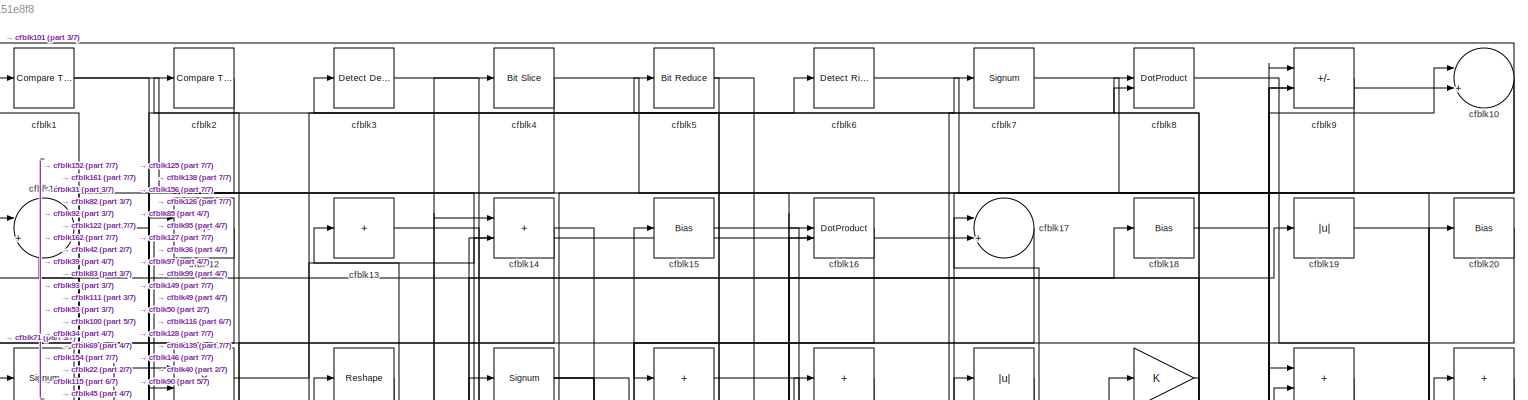
[diagram: root canvas - part 1/7, full width, top band]
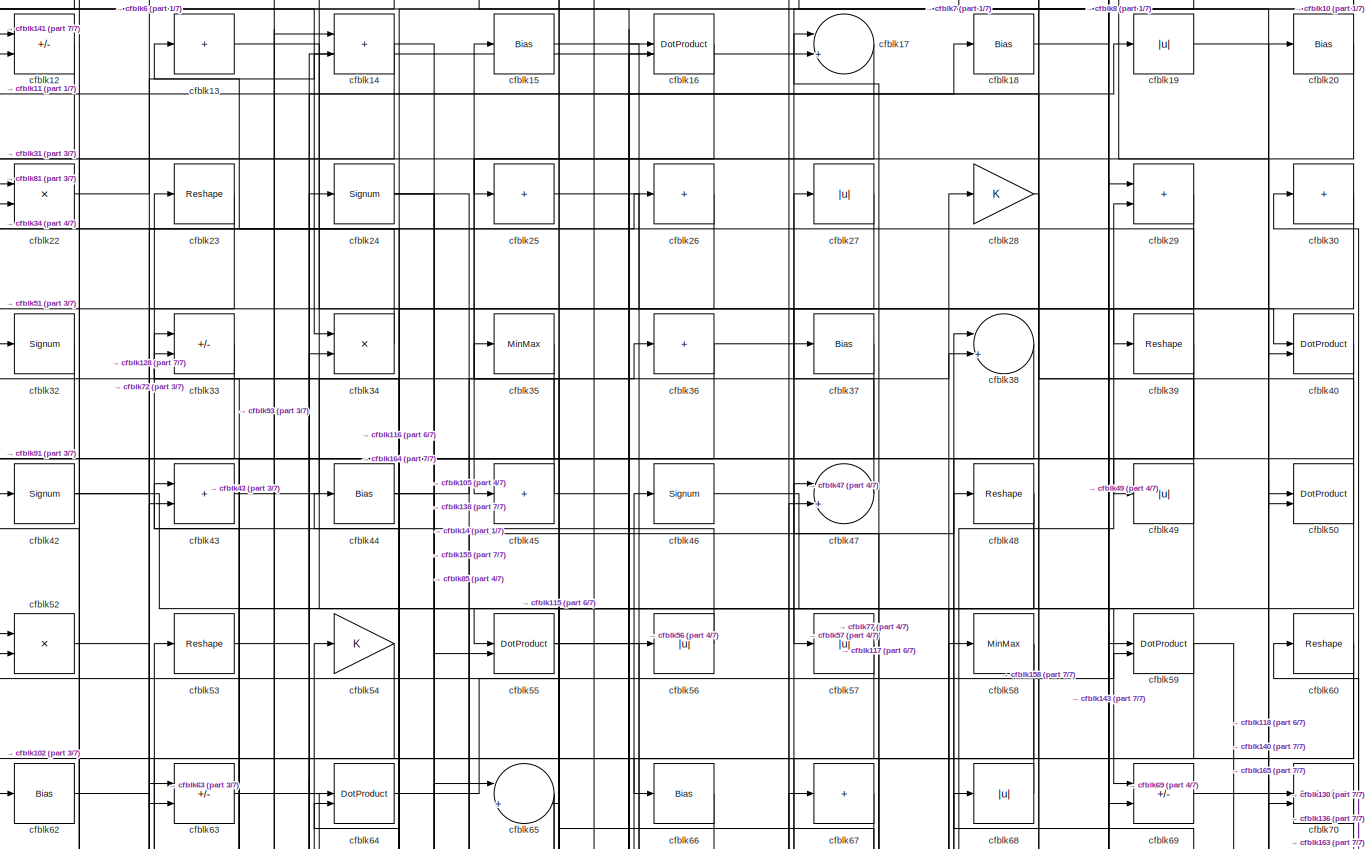
[diagram: root canvas - part 2/7, full width, top band]
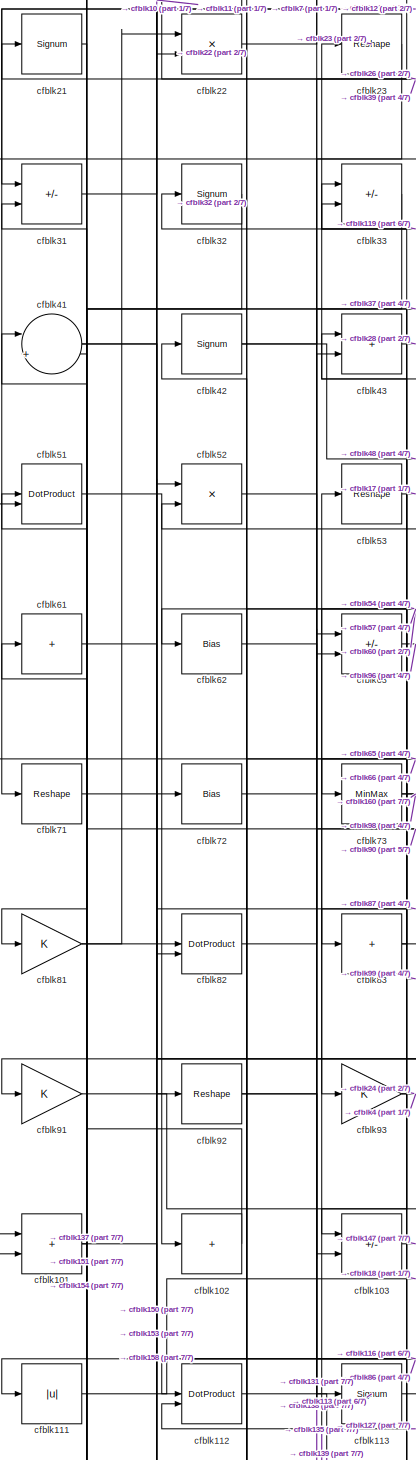
[diagram: root canvas - part 3/7, middle left region]
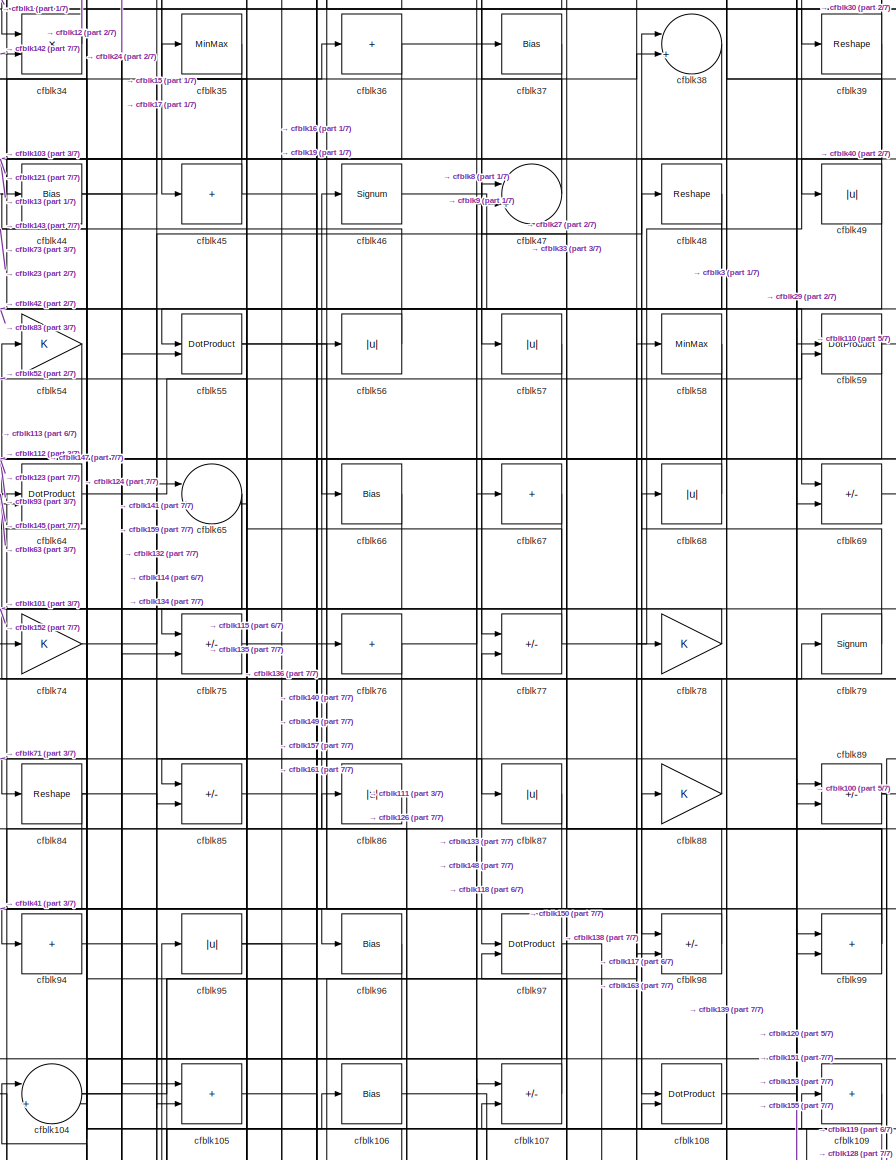
[diagram: root canvas - part 4/7, central region]
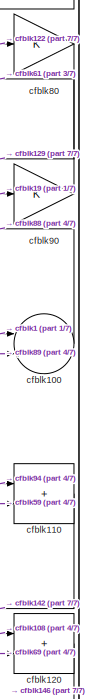
[diagram: root canvas - part 5/7, middle right region]
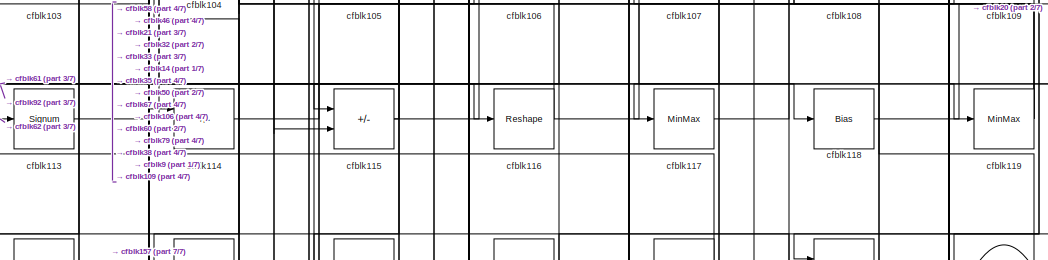
[diagram: root canvas - part 6/7, bottom center region]
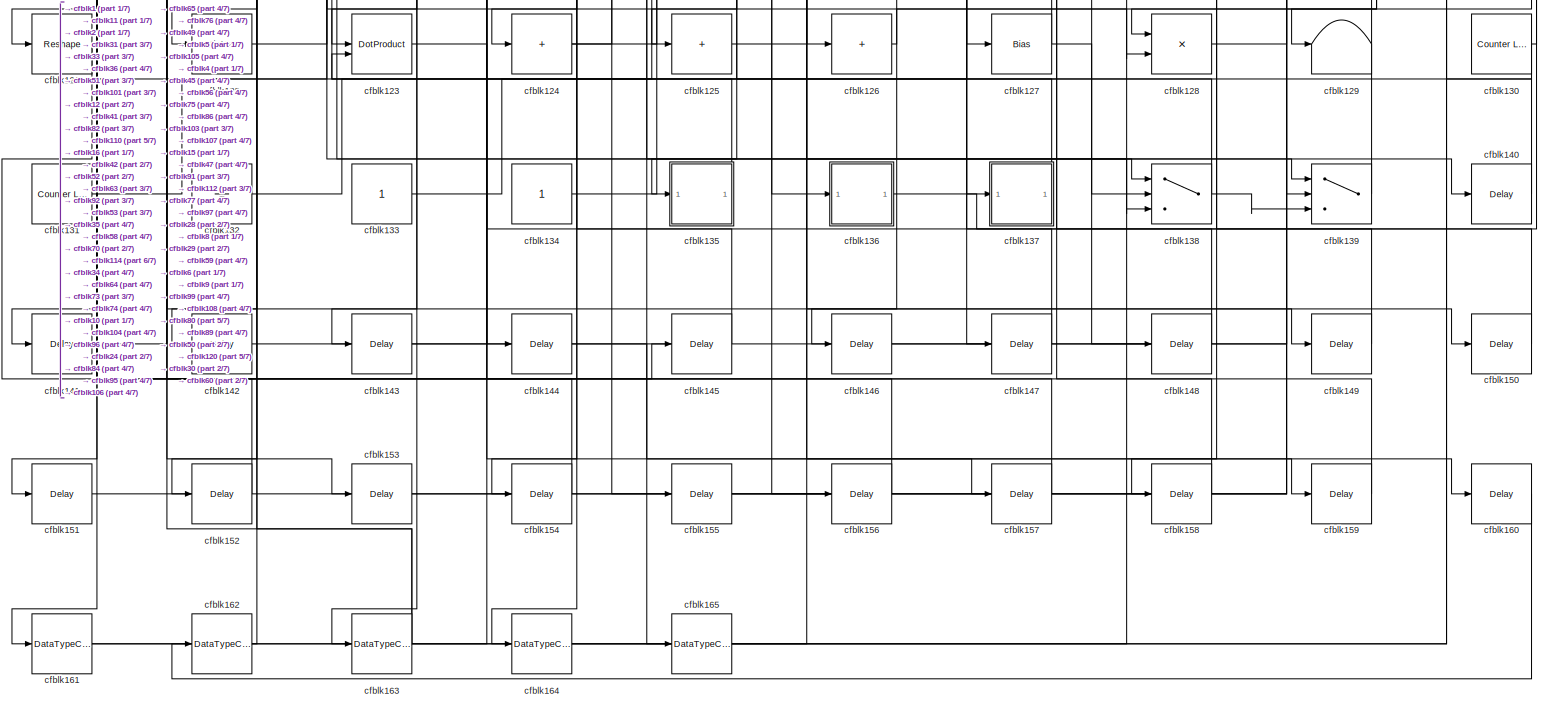
[diagram: root canvas - part 7/7, full width, bottom band]
MODEL slx_888d2151e8f8
KIND model
CONFIG AbsTol = auto
CONFIG EnableMultiTasking = off
CONFIG FixedStep = auto
CONFIG MaxStep = auto
CONFIG MinStep = auto
CONFIG RelTol = 1e-3
CONFIG SampleTimeConstraint = Unconstrained
CONFIG SolverName = VariableStepAuto
CONFIG StartTime = 0.0
CONFIG StopTime = 10.0
BLOCK [Reference] cfblk1  REF=hdlsllib/Logic and Bit
Operations/Compare
To Constant
  SourceBlock = hdlsllib/Logic and Bit\nOperations/Compare\nTo Constant
  SourceType = Compare To Constant
BLOCK [Sum] cfblk10
  Inputs = |++
BLOCK [Sum] cfblk100
  Inputs = |++
BLOCK [Sum] cfblk101
  IconShape = rectangular
BLOCK [Sum] cfblk102
  IconShape = rectangular
  Inputs = +
BLOCK [Sum] cfblk103
  IconShape = rectangular
  Inputs = +-
BLOCK [Sum] cfblk104
  Inputs = |++
BLOCK [Sum] cfblk105
  IconShape = rectangular
BLOCK [Bias] cfblk106
  Bias = 0.0
  SaturateOnIntegerOverflow = off
BLOCK [Sum] cfblk107
  IconShape = rectangular
  Inputs = +-
BLOCK [DotProduct] cfblk108
  OutDataTypeStr = Inherit: Inherit via internal rule
BLOCK [Sum] cfblk109
  IconShape = rectangular
  Inputs = +
BLOCK [Sum] cfblk11
  Inputs = |++
BLOCK [Sum] cfblk110
  IconShape = rectangular
BLOCK [Abs] cfblk111
  SaturateOnIntegerOverflow = off
BLOCK [DotProduct] cfblk112
  OutDataTypeStr = Inherit: Inherit via internal rule
BLOCK [Signum] cfblk113
BLOCK [Sum] cfblk114
  IconShape = rectangular
  Inputs = +-
BLOCK [Sum] cfblk115
  IconShape = rectangular
  Inputs = +-
BLOCK [Reshape] cfblk116
BLOCK [MinMax] cfblk117
BLOCK [Bias] cfblk118
  Bias = 0.0
  SaturateOnIntegerOverflow = off
BLOCK [MinMax] cfblk119
BLOCK [Sum] cfblk12
  IconShape = rectangular
  Inputs = +-
BLOCK [Sum] cfblk120
  IconShape = rectangular
BLOCK [Reshape] cfblk121
BLOCK [MinMax] cfblk122
BLOCK [DotProduct] cfblk123
  OutDataTypeStr = Inherit: Inherit via internal rule
BLOCK [Sum] cfblk124
  IconShape = rectangular
  Inputs = +
BLOCK [Sum] cfblk125
  IconShape = rectangular
  Inputs = +
BLOCK [Sum] cfblk126
  IconShape = rectangular
  Inputs = +
BLOCK [Bias] cfblk127
  Bias = 0.0
  SaturateOnIntegerOverflow = off
BLOCK [Product] cfblk128
  Inputs = */
  RndMeth = Zero
  SaturateOnIntegerOverflow = on
BLOCK [Terminator] cfblk129
BLOCK [Sum] cfblk13
  IconShape = rectangular
  Inputs = +
BLOCK [Reference] cfblk130  REF=hdlsllib/Sources/Counter
Limited
  SourceBlock = hdlsllib/Sources/Counter\nLimited
  SourceType = Counter Limited
BLOCK [Reference] cfblk131  REF=hdlsllib/Sources/Counter
Limited
  SourceBlock = hdlsllib/Sources/Counter\nLimited
  SourceType = Counter Limited
BLOCK [Ground] cfblk132
BLOCK [Constant] cfblk133
  SampleTime = -1
BLOCK [Constant] cfblk134
  SampleTime = -1
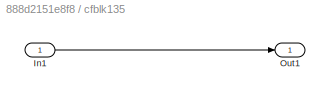
BLOCK [SubSystem] cfblk135
  LibrarySourceBlock = hdlsllib/Ports &\nSubsystems/Subsystem
BLOCK [Inport] cfblk135/In1
BLOCK [Outport] cfblk135/Out1
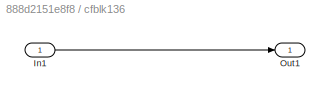
BLOCK [SubSystem] cfblk136
  LibrarySourceBlock = hdlsllib/Ports &\nSubsystems/Subsystem
BLOCK [Inport] cfblk136/In1
BLOCK [Outport] cfblk136/Out1
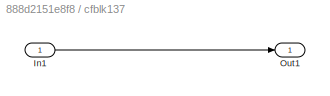
BLOCK [SubSystem] cfblk137
  LibrarySourceBlock = hdlsllib/Ports &\nSubsystems/Subsystem
BLOCK [Inport] cfblk137/In1
BLOCK [Outport] cfblk137/Out1
BLOCK [Switch] cfblk138
  InputSameDT = off
  SaturateOnIntegerOverflow = off
BLOCK [Switch] cfblk139
  InputSameDT = off
  SaturateOnIntegerOverflow = off
BLOCK [Sum] cfblk14
  IconShape = rectangular
BLOCK [Delay] cfblk140
  InputPortMap = u0
  SampleTime = 1
BLOCK [Delay] cfblk141
  InputPortMap = u0
  SampleTime = 1
BLOCK [Delay] cfblk142
  InputPortMap = u0
  SampleTime = 1
BLOCK [Delay] cfblk143
  InputPortMap = u0
  SampleTime = 1
BLOCK [Delay] cfblk144
  InputPortMap = u0
  SampleTime = 1
BLOCK [Delay] cfblk145
  InputPortMap = u0
  SampleTime = 1
BLOCK [Delay] cfblk146
  InputPortMap = u0
  SampleTime = 1
BLOCK [Delay] cfblk147
  InputPortMap = u0
  SampleTime = 1
BLOCK [Delay] cfblk148
  InputPortMap = u0
  SampleTime = 1
BLOCK [Delay] cfblk149
  InputPortMap = u0
  SampleTime = 1
BLOCK [Bias] cfblk15
  Bias = 0.0
  SaturateOnIntegerOverflow = off
BLOCK [Delay] cfblk150
  InputPortMap = u0
  SampleTime = 1
BLOCK [Delay] cfblk151
  InputPortMap = u0
  SampleTime = 1
BLOCK [Delay] cfblk152
  InputPortMap = u0
  SampleTime = 1
BLOCK [Delay] cfblk153
  InputPortMap = u0
  SampleTime = 1
BLOCK [Delay] cfblk154
  InputPortMap = u0
  SampleTime = 1
BLOCK [Delay] cfblk155
  InputPortMap = u0
  SampleTime = 1
BLOCK [Delay] cfblk156
  InputPortMap = u0
  SampleTime = 1
BLOCK [Delay] cfblk157
  InputPortMap = u0
  SampleTime = 1
BLOCK [Delay] cfblk158
  InputPortMap = u0
  SampleTime = 1
BLOCK [Delay] cfblk159
  InputPortMap = u0
  SampleTime = 1
BLOCK [DotProduct] cfblk16
  OutDataTypeStr = Inherit: Inherit via internal rule
BLOCK [Delay] cfblk160
  InputPortMap = u0
  SampleTime = 1
BLOCK [DataTypeConversion] cfblk161
  RndMeth = Floor
  SaturateOnIntegerOverflow = off
BLOCK [DataTypeConversion] cfblk162
  OutDataTypeStr = uint8
  RndMeth = Floor
  SaturateOnIntegerOverflow = off
BLOCK [DataTypeConversion] cfblk163
  RndMeth = Floor
  SaturateOnIntegerOverflow = off
BLOCK [DataTypeConversion] cfblk164
  OutDataTypeStr = uint8
  RndMeth = Floor
  SaturateOnIntegerOverflow = off
BLOCK [DataTypeConversion] cfblk165
  OutDataTypeStr = uint8
  RndMeth = Floor
  SaturateOnIntegerOverflow = off
BLOCK [Sum] cfblk17
  Inputs = |++
BLOCK [Bias] cfblk18
  Bias = 0.0
  SaturateOnIntegerOverflow = off
BLOCK [Abs] cfblk19
  SaturateOnIntegerOverflow = off
BLOCK [Reference] cfblk2  REF=hdlsllib/Logic and Bit
Operations/Compare
To Constant
  SourceBlock = hdlsllib/Logic and Bit\nOperations/Compare\nTo Constant
  SourceType = Compare To Constant
BLOCK [Bias] cfblk20
  Bias = 0.0
  SaturateOnIntegerOverflow = off
BLOCK [Signum] cfblk21
BLOCK [Product] cfblk22
  Inputs = */
  RndMeth = Zero
  SaturateOnIntegerOverflow = on
BLOCK [Reshape] cfblk23
BLOCK [Signum] cfblk24
BLOCK [Sum] cfblk25
  IconShape = rectangular
  Inputs = +
BLOCK [Sum] cfblk26
  IconShape = rectangular
  Inputs = +
BLOCK [Abs] cfblk27
  SaturateOnIntegerOverflow = off
BLOCK [Gain] cfblk28
BLOCK [Sum] cfblk29
  IconShape = rectangular
BLOCK [Reference] cfblk3  REF=simulink/Logic and Bit
Operations/Detect
Decrease
  LibrarySourceBlock = hdlsllib/Logic and Bit\nOperations/Detect\nDecrease
  SourceBlock = simulink/Logic and Bit\nOperations/Detect\nDecrease
  SourceType = Detect Decrease
BLOCK [Sum] cfblk30
  IconShape = rectangular
  Inputs = +
BLOCK [Sum] cfblk31
  IconShape = rectangular
  Inputs = +-
BLOCK [Signum] cfblk32
BLOCK [Sum] cfblk33
  IconShape = rectangular
  Inputs = +-
BLOCK [Product] cfblk34
  Inputs = */
  RndMeth = Zero
  SaturateOnIntegerOverflow = on
BLOCK [MinMax] cfblk35
BLOCK [Sum] cfblk36
  IconShape = rectangular
  Inputs = +
BLOCK [Bias] cfblk37
  Bias = 0.0
  SaturateOnIntegerOverflow = off
BLOCK [Sum] cfblk38
  Inputs = |++
BLOCK [Reshape] cfblk39
BLOCK [Reference] cfblk4  REF=hdlsllib/Logic and Bit
Operations/Bit Slice
  SourceBlock = hdlsllib/Logic and Bit\nOperations/Bit Slice
  SourceType = Bit Slice
BLOCK [DotProduct] cfblk40
  OutDataTypeStr = Inherit: Inherit via internal rule
BLOCK [Sum] cfblk41
  Inputs = |++
BLOCK [Signum] cfblk42
BLOCK [Sum] cfblk43
  IconShape = rectangular
BLOCK [Bias] cfblk44
  Bias = 0.0
  SaturateOnIntegerOverflow = off
BLOCK [Sum] cfblk45
  IconShape = rectangular
  Inputs = +
BLOCK [Signum] cfblk46
BLOCK [Sum] cfblk47
  Inputs = |++
BLOCK [Reshape] cfblk48
BLOCK [Abs] cfblk49
  SaturateOnIntegerOverflow = off
BLOCK [Reference] cfblk5  REF=hdlsllib/Logic and Bit
Operations/Bit Reduce
  SourceBlock = hdlsllib/Logic and Bit\nOperations/Bit Reduce
  SourceType = Bit Reduce
BLOCK [DotProduct] cfblk50
  OutDataTypeStr = Inherit: Inherit via internal rule
BLOCK [DotProduct] cfblk51
  OutDataTypeStr = Inherit: Inherit via internal rule
BLOCK [Product] cfblk52
  Inputs = */
  RndMeth = Zero
  SaturateOnIntegerOverflow = on
BLOCK [Reshape] cfblk53
BLOCK [Gain] cfblk54
BLOCK [DotProduct] cfblk55
  OutDataTypeStr = Inherit: Inherit via internal rule
BLOCK [Abs] cfblk56
  SaturateOnIntegerOverflow = off
BLOCK [Abs] cfblk57
  SaturateOnIntegerOverflow = off
BLOCK [MinMax] cfblk58
BLOCK [DotProduct] cfblk59
  OutDataTypeStr = Inherit: Inherit via internal rule
BLOCK [Reference] cfblk6  REF=hdlsllib/Logic and Bit
Operations/Detect Rise
Nonnegative
  SourceBlock = hdlsllib/Logic and Bit\nOperations/Detect Rise\nNonnegative
  SourceType = Detect Rise Nonnegative
BLOCK [Reshape] cfblk60
BLOCK [Sum] cfblk61
  IconShape = rectangular
  Inputs = +
BLOCK [Bias] cfblk62
  Bias = 0.0
  SaturateOnIntegerOverflow = off
BLOCK [Sum] cfblk63
  IconShape = rectangular
  Inputs = +-
BLOCK [DotProduct] cfblk64
  OutDataTypeStr = Inherit: Inherit via internal rule
BLOCK [Sum] cfblk65
  Inputs = |++
BLOCK [Bias] cfblk66
  Bias = 0.0
  SaturateOnIntegerOverflow = off
BLOCK [Sum] cfblk67
  IconShape = rectangular
  Inputs = +
BLOCK [Abs] cfblk68
  SaturateOnIntegerOverflow = off
BLOCK [Sum] cfblk69
  IconShape = rectangular
  Inputs = +-
BLOCK [Signum] cfblk7
BLOCK [DotProduct] cfblk70
  OutDataTypeStr = Inherit: Inherit via internal rule
BLOCK [Reshape] cfblk71
BLOCK [Bias] cfblk72
  Bias = 0.0
  SaturateOnIntegerOverflow = off
BLOCK [MinMax] cfblk73
BLOCK [Gain] cfblk74
BLOCK [Sum] cfblk75
  IconShape = rectangular
  Inputs = +-
BLOCK [Sum] cfblk76
  IconShape = rectangular
  Inputs = +
BLOCK [Sum] cfblk77
  IconShape = rectangular
  Inputs = +-
BLOCK [Gain] cfblk78
BLOCK [Signum] cfblk79
BLOCK [DotProduct] cfblk8
  OutDataTypeStr = Inherit: Inherit via internal rule
BLOCK [Gain] cfblk80
BLOCK [Gain] cfblk81
BLOCK [DotProduct] cfblk82
  OutDataTypeStr = Inherit: Inherit via internal rule
BLOCK [Sum] cfblk83
  IconShape = rectangular
  Inputs = +
BLOCK [Reshape] cfblk84
BLOCK [Sum] cfblk85
  IconShape = rectangular
  Inputs = +-
BLOCK [Abs] cfblk86
  SaturateOnIntegerOverflow = off
BLOCK [Abs] cfblk87
  SaturateOnIntegerOverflow = off
BLOCK [Gain] cfblk88
BLOCK [Sum] cfblk89
  IconShape = rectangular
  Inputs = +-
BLOCK [Sum] cfblk9
  IconShape = rectangular
  Inputs = +-
BLOCK [Gain] cfblk90
BLOCK [Gain] cfblk91
BLOCK [Reshape] cfblk92
BLOCK [Gain] cfblk93
BLOCK [Sum] cfblk94
  IconShape = rectangular
  Inputs = +
BLOCK [Abs] cfblk95
  SaturateOnIntegerOverflow = off
BLOCK [Bias] cfblk96
  Bias = 0.0
  SaturateOnIntegerOverflow = off
BLOCK [DotProduct] cfblk97
  OutDataTypeStr = Inherit: Inherit via internal rule
BLOCK [Sum] cfblk98
  IconShape = rectangular
  Inputs = +-
BLOCK [Sum] cfblk99
  IconShape = rectangular
LINE cfblk100:1 -> cfblk88:1
NET cfblk101:1 -> cfblk153:1, cfblk41:1
LINE cfblk102:1 -> cfblk41:2
LINE cfblk103:1 -> cfblk147:1
NET cfblk104:1 -> cfblk38:2, cfblk75:2
LINE cfblk105:1 -> cfblk157:1
LINE cfblk106:1 -> cfblk118:1
LINE cfblk107:1 -> cfblk44:1
LINE cfblk108:1 -> cfblk120:1
LINE cfblk109:1 -> cfblk107:2
NET cfblk10:1 -> cfblk101:1, cfblk154:1, cfblk22:2
LINE cfblk110:1 -> cfblk142:1
LINE cfblk111:1 -> cfblk18:1
LINE cfblk112:1 -> cfblk139:1
LINE cfblk113:1 -> cfblk46:1
LINE cfblk114:1 -> cfblk109:1
NET cfblk115:1 -> cfblk35:1, cfblk67:1
NET cfblk116:1 -> cfblk32:1, cfblk9:2
LINE cfblk117:1 -> cfblk79:1
LINE cfblk118:1 -> cfblk20:1
NET cfblk119:1 -> cfblk21:1, cfblk33:2, cfblk38:1
LINE cfblk11:1 -> cfblk92:1
LINE cfblk120:1 -> cfblk146:1
LINE cfblk121:1 -> cfblk145:1
LINE cfblk122:1 -> cfblk80:1
LINE cfblk123:1 -> cfblk144:1
NET cfblk124:1 -> cfblk65:1, cfblk76:1
LINE cfblk125:1 -> cfblk16:1
LINE cfblk126:1 -> cfblk86:1
NET cfblk127:1 -> cfblk112:2, cfblk148:1
LINE cfblk128:1 -> cfblk10:2
LINE cfblk12:1 -> cfblk31:1
NET cfblk130:1 -> cfblk123:2, cfblk60:1
LINE cfblk131:1 -> cfblk63:1
LINE cfblk132:1 -> cfblk95:1
LINE cfblk133:1 -> cfblk47:2
LINE cfblk134:1 -> cfblk106:1
LINE cfblk135/In1:1 -> cfblk135/Out1:1
LINE cfblk135:1 -> cfblk53:1
LINE cfblk136/In1:1 -> cfblk136/Out1:1
LINE cfblk136:1 -> cfblk30:1
LINE cfblk137/In1:1 -> cfblk137/Out1:1
LINE cfblk137:1 -> cfblk51:1
NET cfblk138:1 -> cfblk139:3, cfblk5:1
LINE cfblk139:1 -> cfblk108:2
LINE cfblk13:1 -> cfblk69:1
LINE cfblk140:1 -> cfblk50:1
LINE cfblk141:1 -> cfblk12:1
LINE cfblk142:1 -> cfblk34:2
LINE cfblk143:1 -> cfblk29:1
LINE cfblk144:1 -> cfblk165:1
LINE cfblk145:1 -> cfblk64:1
LINE cfblk146:1 -> cfblk9:1
LINE cfblk147:1 -> cfblk104:1
LINE cfblk148:1 -> cfblk107:1
LINE cfblk149:1 -> cfblk8:2
NET cfblk14:1 -> cfblk115:2, cfblk71:1
LINE cfblk150:1 -> cfblk77:2
LINE cfblk151:1 -> cfblk99:1
LINE cfblk152:1 -> cfblk1:1
LINE cfblk153:1 -> cfblk89:1
LINE cfblk154:1 -> cfblk31:2
LINE cfblk155:1 -> cfblk59:1
LINE cfblk156:1 -> cfblk11:1
LINE cfblk157:1 -> cfblk114:1
LINE cfblk158:1 -> cfblk82:1
LINE cfblk159:1 -> cfblk97:2
LINE cfblk15:1 -> cfblk127:1
LINE cfblk160:1 -> cfblk162:1
NET cfblk161:1 -> cfblk56:1, cfblk74:1
LINE cfblk162:1 -> cfblk2:1
NET cfblk163:1 -> cfblk42:1, cfblk52:1, cfblk58:1
LINE cfblk164:1 -> cfblk70:1
LINE cfblk165:1 -> cfblk70:2
LINE cfblk16:1 -> cfblk122:1
LINE cfblk17:1 -> cfblk45:1
LINE cfblk18:1 -> cfblk10:1
LINE cfblk19:1 -> cfblk90:1
NET cfblk1:1 -> cfblk100:1, cfblk34:1
LINE cfblk20:1 -> cfblk25:1
LINE cfblk21:1 -> cfblk81:1
LINE cfblk22:1 -> cfblk6:1
LINE cfblk23:1 -> cfblk63:2
NET cfblk24:1 -> cfblk105:1, cfblk138:3, cfblk155:1
LINE cfblk25:1 -> cfblk40:1
LINE cfblk26:1 -> cfblk51:2
LINE cfblk27:1 -> cfblk57:1
LINE cfblk28:1 -> cfblk158:1
LINE cfblk29:1 -> cfblk164:1
LINE cfblk2:1 -> cfblk161:1
LINE cfblk30:1 -> cfblk69:2
LINE cfblk31:1 -> cfblk7:1
LINE cfblk32:1 -> cfblk91:1
LINE cfblk33:1 -> cfblk151:1
LINE cfblk34:1 -> cfblk12:2
LINE cfblk35:1 -> cfblk143:1
NET cfblk36:1 -> cfblk121:1, cfblk8:1
LINE cfblk37:1 -> cfblk73:1
LINE cfblk38:1 -> cfblk84:1
NET cfblk39:1 -> cfblk103:2, cfblk108:1, cfblk13:1
LINE cfblk3:1 -> cfblk39:1
LINE cfblk40:1 -> cfblk49:1
NET cfblk41:1 -> cfblk150:1, cfblk99:2
NET cfblk42:1 -> cfblk14:2, cfblk85:2
LINE cfblk43:1 -> cfblk28:1
NET cfblk44:1 -> cfblk36:1, cfblk55:2
NET cfblk45:1 -> cfblk149:1, cfblk15:1
LINE cfblk46:1 -> cfblk78:1
LINE cfblk47:1 -> cfblk27:1
NET cfblk48:1 -> cfblk55:1, cfblk83:1
NET cfblk49:1 -> cfblk135:1, cfblk3:1
NET cfblk4:1 -> cfblk126:1, cfblk82:2
NET cfblk50:1 -> cfblk115:1, cfblk11:2
LINE cfblk51:1 -> cfblk62:1
LINE cfblk52:1 -> cfblk128:2
LINE cfblk53:1 -> cfblk17:2
LINE cfblk54:1 -> cfblk93:1
NET cfblk55:1 -> cfblk89:2, cfblk98:1
LINE cfblk56:1 -> cfblk23:1
LINE cfblk57:1 -> cfblk112:1
NET cfblk58:1 -> cfblk114:2, cfblk123:1
NET cfblk59:1 -> cfblk110:2, cfblk77:1
NET cfblk5:1 -> cfblk125:1, cfblk156:1
NET cfblk60:1 -> cfblk102:1, cfblk117:1
LINE cfblk61:1 -> cfblk119:1
LINE cfblk62:1 -> cfblk113:1
LINE cfblk63:1 -> cfblk96:1
LINE cfblk64:1 -> cfblk59:2
NET cfblk65:1 -> cfblk103:1, cfblk152:1
LINE cfblk66:1 -> cfblk101:2
LINE cfblk67:1 -> cfblk85:1
LINE cfblk68:1 -> cfblk66:1
LINE cfblk69:1 -> cfblk120:2
LINE cfblk6:1 -> cfblk139:2
LINE cfblk70:1 -> cfblk163:1
LINE cfblk71:1 -> cfblk87:1
LINE cfblk72:1 -> cfblk26:1
NET cfblk73:1 -> cfblk160:1, cfblk98:2
LINE cfblk74:1 -> cfblk48:1
LINE cfblk75:1 -> cfblk140:1
NET cfblk76:1 -> cfblk105:2, cfblk37:1
NET cfblk77:1 -> cfblk29:2, cfblk52:2
LINE cfblk78:1 -> cfblk75:1
LINE cfblk79:1 -> cfblk68:1
LINE cfblk7:1 -> cfblk50:2
LINE cfblk80:1 -> cfblk129:1
NET cfblk81:1 -> cfblk22:1, cfblk72:1
LINE cfblk82:1 -> cfblk43:2
NET cfblk83:1 -> cfblk14:1, cfblk43:1
NET cfblk84:1 -> cfblk141:1, cfblk159:1, cfblk64:2
LINE cfblk85:1 -> cfblk16:2
LINE cfblk86:1 -> cfblk111:1
LINE cfblk87:1 -> cfblk94:1
LINE cfblk88:1 -> cfblk54:1
NET cfblk89:1 -> cfblk100:2, cfblk128:1
LINE cfblk8:1 -> cfblk40:2
LINE cfblk90:1 -> cfblk61:1
LINE cfblk91:1 -> cfblk137:1
NET cfblk92:1 -> cfblk116:1, cfblk138:1
NET cfblk93:1 -> cfblk24:1, cfblk4:1
LINE cfblk94:1 -> cfblk110:1
NET cfblk95:1 -> cfblk136:1, cfblk19:1
LINE cfblk96:1 -> cfblk124:1
NET cfblk97:1 -> cfblk104:2, cfblk138:2
LINE cfblk98:1 -> cfblk47:1
NET cfblk99:1 -> cfblk17:1, cfblk33:1, cfblk65:2
LINE cfblk9:1 -> cfblk97:1
note: NET lines group one-source signal fan-out (src -> all destinations, sorted); 1:1 wires keep LINE
